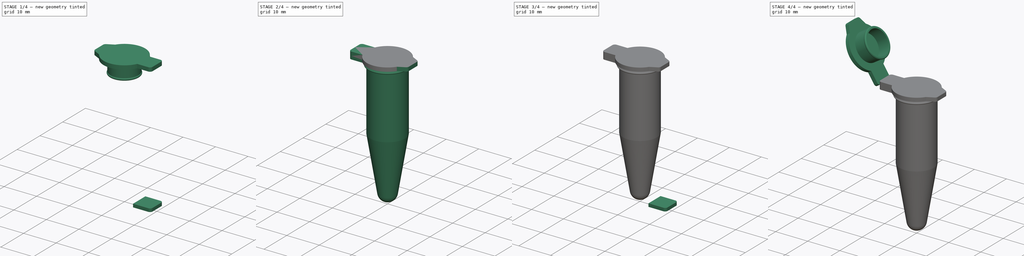
[diagram: build sequence overview — one tinted view per stage of 4, left to right]
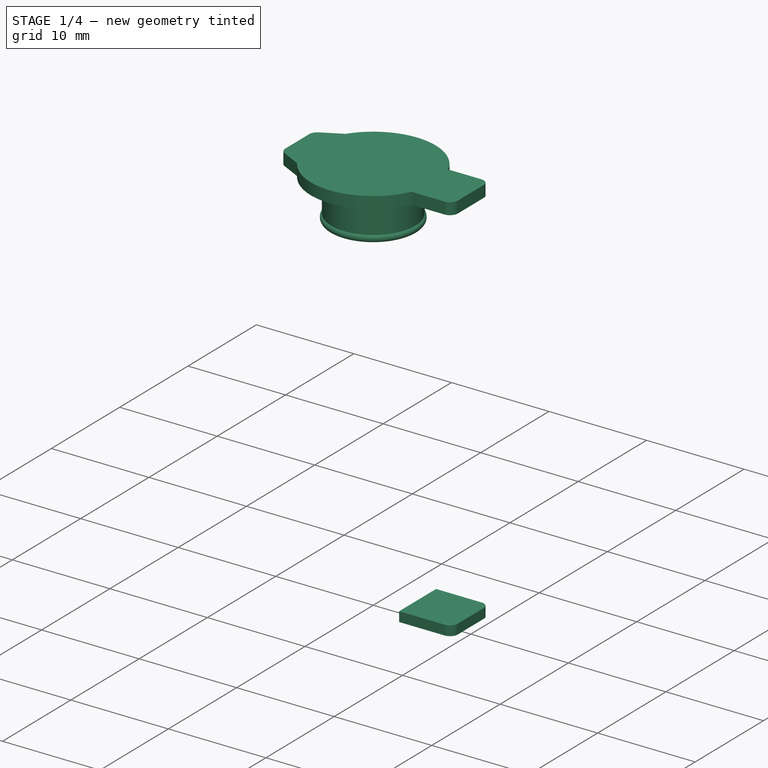
[diagram: stage 1 of 4 — iso view after this stage's code; geometry added in this stage tinted green]
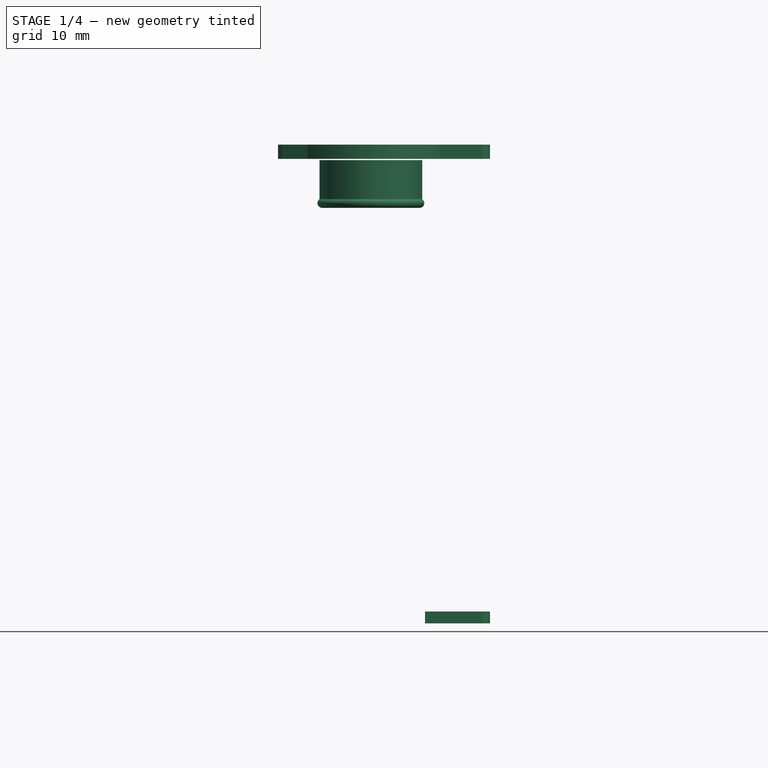
[diagram: stage 1 of 4 — front view after this stage's code; geometry added in this stage tinted green]
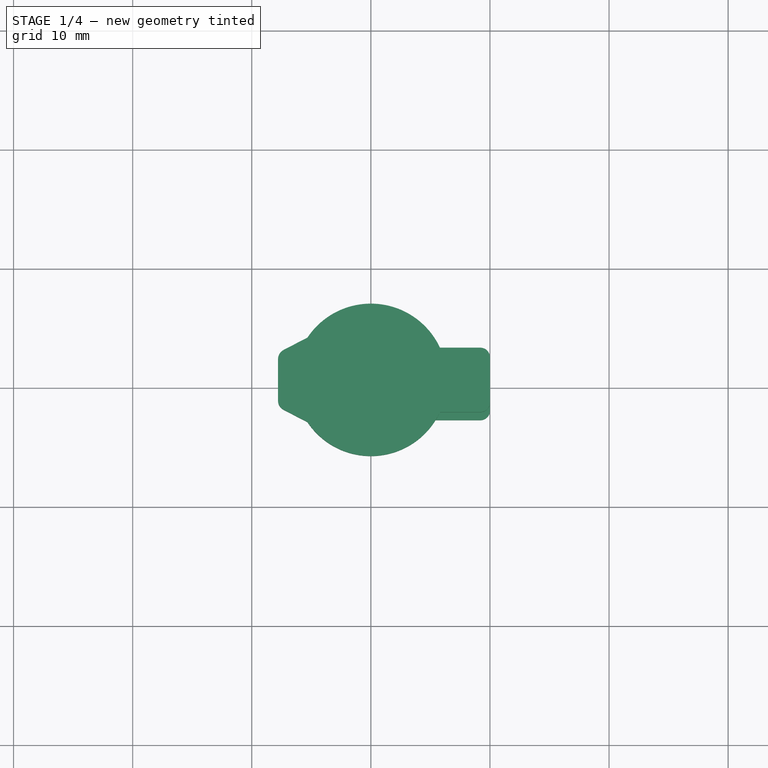
[diagram: stage 1 of 4 — top view after this stage's code; geometry added in this stage tinted green]
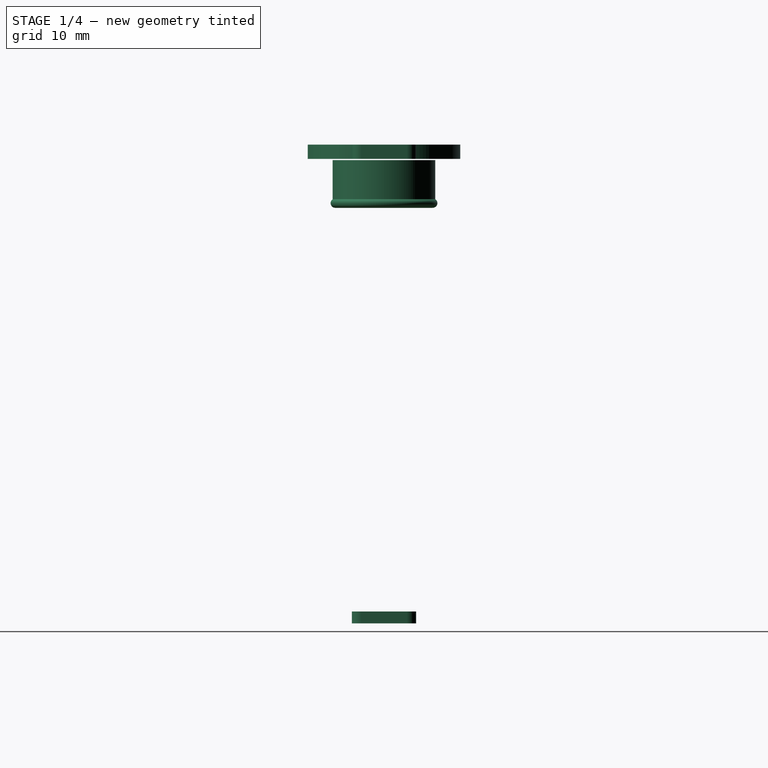
[diagram: stage 1 of 4 — right view after this stage's code; geometry added in this stage tinted green]
FCSTD DOCUMENT  (FreeCAD 0.20R29410 (Git))
Label: Eppendorf tube
License: All rights reserved
LicenseURL: http://en.wikipedia.org/wiki/All_rights_reserved
objects: Sketcher::SketchObject×8, PartDesign::Body×8, TechDraw::DrawViewPart×6, PartDesign::Revolution×4, PartDesign::Pad×4, Part::MultiFuse×4, Part::Compound×2, TechDraw::DrawSVGTemplate×1, TechDraw::DrawPage×1
note: 38 computed .brp shape members not serialized (recipe doc carries the construction recipe); baked Part::Feature solids carry a one-line shape summary decoded from their .brp

FEATURE [PartDesign::Body] Body001  label="Eppendorf body"
  Group = -> [Sketch001,Revolution]
  Origin = -> Origin001
  Tip = -> Revolution
FEATURE [Sketcher::SketchObject] Sketch
  FullyConstrained = false
  MapMode = 5
  Placement = pos=(0,0,0) rot=(1,0,0;1.5708rad)
  Support = -> [XZ_Plane]
  sketch-geometry (13):
    g0: LineSegment StartX=0 StartY=34.9 StartZ=0 EndX=4.01891 EndY=34.9 EndZ=0
    g1: LineSegment StartX=0 StartY=0 StartZ=0 EndX=0 EndY=38.9 EndZ=0
    g2: ArcOfCircle CenterX=4.09051 CenterY=35.2887 CenterZ=0 NormalX=0 NormalY=0 NormalZ=1 AngleXU=0 Radius=0.395229 StartAngle=4.53021 EndAngle=7.26546
    g3: LineSegment StartX=4.30992 StartY=35.6174 StartZ=0 EndX=4.30992 EndY=38.9 EndZ=0
    g4: LineSegment StartX=4.30992 StartY=38.9 StartZ=0 EndX=0 EndY=38.9 EndZ=0
    g5: LineSegment StartX=3.79002 StartY=34.9 StartZ=0 EndX=3.79002 EndY=38.631 EndZ=0
    g6: LineSegment StartX=3.79002 StartY=38.631 StartZ=0 EndX=0 EndY=38.631 EndZ=0
    g7: LineSegment StartX=3.79002 StartY=34.9 StartZ=0 EndX=4.01891 EndY=34.9 EndZ=0
    g8: LineSegment StartX=4.30992 StartY=35.6174 StartZ=0 EndX=4.30992 EndY=38.9 EndZ=0
    g9: LineSegment StartX=4.30992 StartY=38.9 StartZ=0 EndX=0 EndY=38.9 EndZ=0
    g10: LineSegment StartX=0 StartY=38.631 StartZ=0 EndX=0 EndY=38.9 EndZ=0
    g11: LineSegment StartX=0 StartY=38.631 StartZ=0 EndX=3.79002 EndY=38.631 EndZ=0
    g12: LineSegment StartX=3.79002 StartY=38.631 StartZ=0 EndX=3.79002 EndY=34.9 EndZ=0
  constraints (29):
    c: PointOnObject(g0,g-2)
    c: Horizontal(g0)
    c: Coincident(g1,g-1)
    c: PointOnObject(g1,g-2)
    c: DistanceY(g1,g1) = 38.9
    c: DistanceY(g0,g1) = 4
    c: Coincident(g2,g0)
    c: Coincident(g3,g2)
    c: Vertical(g3)
    c: Coincident(g4,g3)
    c: Coincident(g4,g1)
    c: Horizontal(g4)
    c: PointOnObject(g5,g0)
    c: Vertical(g5)
    c: Coincident(g6,g5)
    c: PointOnObject(g6,g1)
    c: Horizontal(g6)
    c: Coincident(g7,g5)
    c: Coincident(g7,g0)
    c: Coincident(g8,g2)
    c: Coincident(g8,g3)
    c: Coincident(g9,g8)
    c: Coincident(g9,g1)
    c: Coincident(g10,g6)
    c: Coincident(g10,g9)
    c: Coincident(g11,g10)
    c: Coincident(g11,g5)
    c: Coincident(g12,g11)
    c: Coincident(g12,g7)
FEATURE [PartDesign::Revolution] Revolution001
  Angle = 360
  Axis = (0,2e-16,1)
  Base = (0,0,0)
  Placement = pos=(0,0,0) rot=(1,0,0;1.5708rad)
  Profile = -> Sketch
  ReferenceAxis = -> Sketch [V_Axis]
  Reversed = true
FEATURE [PartDesign::Body] Body  label="Cup inner"
  Group = -> [Sketch,Revolution001]
  Origin = -> Origin
  Tip = -> Revolution001
FEATURE [Sketcher::SketchObject] Sketch002
  FullyConstrained = false
  MapMode = 5
  Support = -> [XY_Plane002]
  sketch-geometry (17):
    g0: ArcOfCircle CenterX=0 CenterY=0 CenterZ=0 NormalX=0 NormalY=0 NormalZ=1 AngleXU=0 Radius=6.4 StartAngle=3.72976 EndAngle=5.84767
    g1: LineSegment StartX=5.80259 StartY=2.7 StartZ=0 EndX=9.2 EndY=2.7 EndZ=0
    g2: LineSegment StartX=5.80259 StartY=-2.7 StartZ=0 EndX=9.2 EndY=-2.7 EndZ=0
    g3: LineSegment StartX=10 StartY=1.9 StartZ=0 EndX=10 EndY=0 EndZ=0
    g4: LineSegment StartX=10 StartY=-1.9 StartZ=0 EndX=10 EndY=0 EndZ=0
    g5: LineSegment StartX=-5.32452 StartY=3.55098 StartZ=0 EndX=-7.33063 EndY=2.50984 EndZ=0
    g6: LineSegment StartX=-5.32452 StartY=-3.55098 StartZ=0 EndX=-7.33063 EndY=-2.50984 EndZ=0
    g7: LineSegment StartX=-7.79479 StartY=-1.74599 StartZ=0 EndX=-7.79479 EndY=0 EndZ=0
    g8: LineSegment StartX=-7.79479 StartY=0 StartZ=0 EndX=-7.79479 EndY=1.74599 EndZ=0
    g9: LineSegment StartX=-5.32452 StartY=-3.55098 StartZ=0 EndX=-5.32452 EndY=3.55098 EndZ=0
    g10: ArcOfCircle CenterX=0 CenterY=0 CenterZ=0 NormalX=0 NormalY=0 NormalZ=1 AngleXU=0 Radius=6.4 StartAngle=0.435512 EndAngle=2.55342
    g11: LineSegment StartX=5.80259 StartY=-2.7 StartZ=0 EndX=5.80259 EndY=2.7 EndZ=0
    g12: ArcOfCircle CenterX=-6.93421 CenterY=1.74599 CenterZ=0 NormalX=0 NormalY=0 NormalZ=1 AngleXU=0 Radius=0.860587 StartAngle=2.04952 EndAngle=3.14159
    g13: ArcOfCircle CenterX=-6.93421 CenterY=-1.74599 CenterZ=0 NormalX=0 NormalY=0 NormalZ=1 AngleXU=0 Radius=0.860587 StartAngle=3.14159 EndAngle=4.23367
    g14: ArcOfCircle CenterX=9.2 CenterY=1.9 CenterZ=0 NormalX=0 NormalY=0 NormalZ=1 AngleXU=0 Radius=0.8 StartAngle=0 EndAngle=1.5708
    g15: ArcOfCircle CenterX=9.2 CenterY=-1.9 CenterZ=0 NormalX=0 NormalY=0 NormalZ=1 AngleXU=0 Radius=0.8 StartAngle=4.71239 EndAngle=6.28319
    g16: LineSegment StartX=0 StartY=0 StartZ=0 EndX=10 EndY=0 EndZ=0
  constraints (40):
    c: Coincident(g0,g-1)
    c: Horizontal(g1)
    c: Horizontal(g2)
    c: PointOnObject(g3,g-1)
    c: Vertical(g3)
    c: Coincident(g4,g3)
    c: Vertical(g4)
    c: Equal(g4,g3)
    c: PointOnObject(g7,g-1)
    c: Vertical(g7)
    c: Coincident(g8,g7)
    c: Vertical(g8)
    c: Equal(g8,g7)
    c: Coincident(g9,g6)
    c: Coincident(g9,g5)
    c: Vertical(g9)
    c: Coincident(g10,g5)
    c: Coincident(g0,g9)
    c: Equal(g0,g10)
    c: Coincident(g0,g2)
    c: Coincident(g10,g1)
    c: Coincident(g0,g10)
    c: Coincident(g11,g0)
    c: Coincident(g11,g1)
    c: Tangent(g8,g12) = 1.5708
    c: Tangent(g5,g12) = -1.5708
    c: Tangent(g6,g13) = 1.5708
    c: Tangent(g7,g13) = 1.5708
    c: Equal(g12,g13)
    c: Tangent(g1,g14) = 1.5708
    c: Tangent(g3,g14) = 1.5708
    c: Tangent(g2,g15) = -1.5708
    c: Tangent(g4,g15) = -1.5708
    c: Vertical(g11)
    c: Coincident(g16,g0)
    c: Coincident(g16,g3)
    c: DistanceX(g16,g16) = 10
    c: DistanceY(g3,g3) = 1.9
    c: Radius(g10) = 6.4
    c: Radius(g14) = 0.8
FEATURE [PartDesign::Pad] Pad
  Direction = (0,0,1)
  Length = 1.2
  Length2 = 10
  Profile = -> Sketch002
  ReferenceAxis = -> Sketch002 [N_Axis]
  Type = 0
FEATURE [PartDesign::Body] Body002  label="Cup"
  Group = -> [Sketch002,Pad]
  Origin = -> Origin002
  Placement = pos=(0,0,39) rot=(0,0,1;0rad)
  Tip = -> Pad
FEATURE [Sketcher::SketchObject] Sketch003
  FullyConstrained = false
  MapMode = 5
  Support = -> [XY_Plane003]
  sketch-geometry (9):
    g0: LineSegment StartX=0 StartY=0 StartZ=0 EndX=10 EndY=0 EndZ=0
    g1: LineSegment StartX=10 StartY=0 StartZ=0 EndX=10 EndY=1.9 EndZ=0
    g2: LineSegment StartX=10 StartY=0 StartZ=0 EndX=10 EndY=-1.9 EndZ=0
    g3: LineSegment StartX=4.54765 StartY=2.7 StartZ=0 EndX=9.26103 EndY=2.7 EndZ=0
    g4: LineSegment StartX=4.54765 StartY=-2.7 StartZ=0 EndX=9.22875 EndY=-2.7 EndZ=0
    g5: ArcOfCircle CenterX=9.2 CenterY=-1.90052 CenterZ=0 NormalX=0 NormalY=0 NormalZ=1 AngleXU=0 Radius=0.8 StartAngle=4.74833 EndAngle=6.28383
    g6: ArcOfCircle CenterX=9.2 CenterY=1.90233 CenterZ=0 NormalX=0 NormalY=0 NormalZ=1 AngleXU=0 Radius=0.8 StartAngle=6.28027 EndAngle=7.77762
    g7: LineSegment StartX=4.54765 StartY=0 StartZ=0 EndX=4.54765 EndY=2.7 EndZ=0
    g8: LineSegment StartX=4.54765 StartY=0 StartZ=0 EndX=4.54765 EndY=-2.7 EndZ=0
  constraints (25):
    c: Coincident(g0,g-1)
    c: PointOnObject(g0,g-1)
    c: Coincident(g1,g0)
    c: Vertical(g1)
    c: Coincident(g2,g0)
    c: Vertical(g2)
    c: Horizontal(g3)
    c: Horizontal(g4)
    c: Coincident(g5,g4)
    c: Coincident(g5,g2)
    c: Coincident(g6,g1)
    c: Coincident(g6,g3)
    c: PointOnObject(g7,g0)
    c: Coincident(g7,g3)
    c: Coincident(g8,g7)
    c: Coincident(g8,g4)
    c: Vertical(g8)
    c: Vertical(g7)
    c: Equal(g5,g6)
    c: Equal(g2,g1)
    c: DistanceX(g0,g1) = 10
    c: DistanceY(g1,g1) = 1.9
    c: Radius(g6) = 0.8
    c: DistanceY(g7,g3) = 2.7
    c: Equal(g8,g7)
FEATURE [PartDesign::Pad] Pad001
  Direction = (0,0,1)
  Length = 1
  Length2 = 10
  Profile = -> Sketch003
  ReferenceAxis = -> Sketch003 [N_Axis]
  Type = 0
FEATURE [Part::MultiFuse] Fusion001  label="Cup full"
  Shapes = -> [Body002,Body]
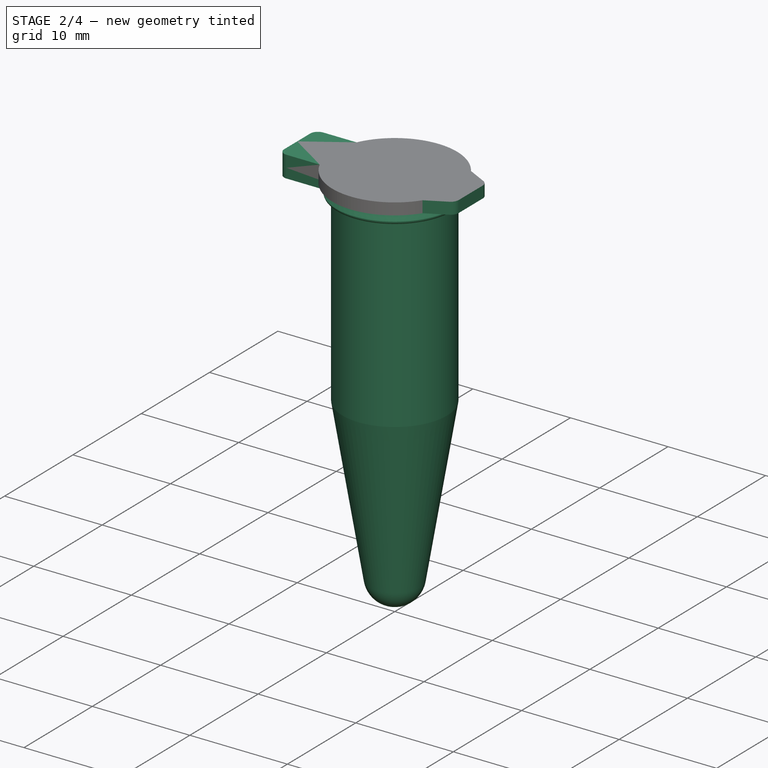
[diagram: stage 2 of 4 — iso view after this stage's code; geometry added in this stage tinted green]
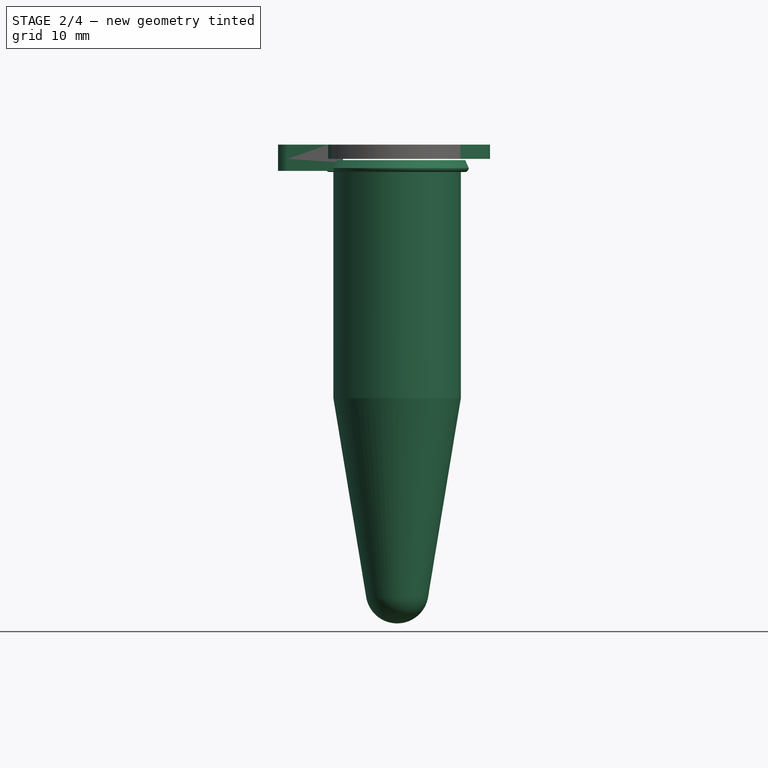
[diagram: stage 2 of 4 — front view after this stage's code; geometry added in this stage tinted green]
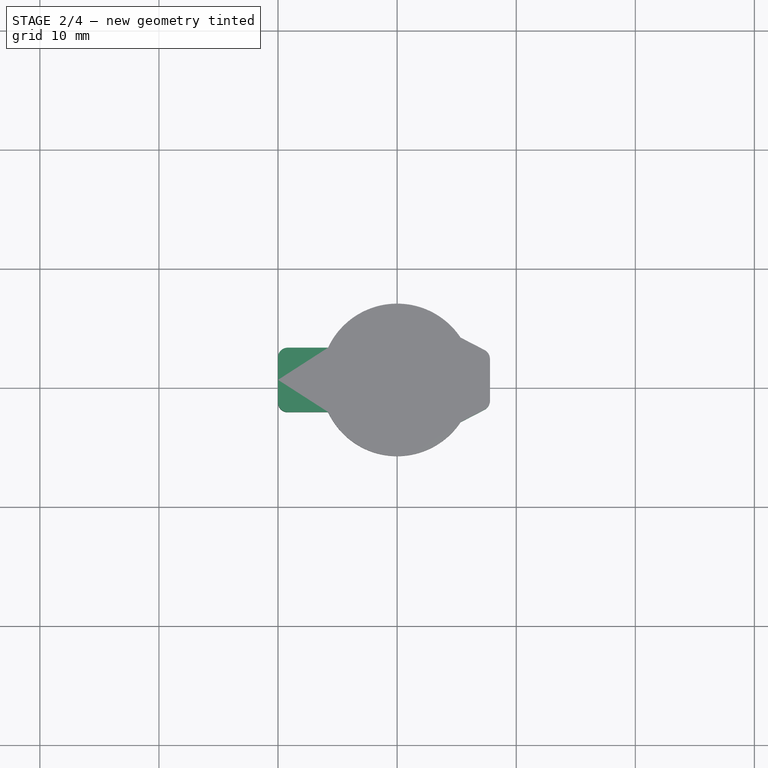
[diagram: stage 2 of 4 — top view after this stage's code; geometry added in this stage tinted green]
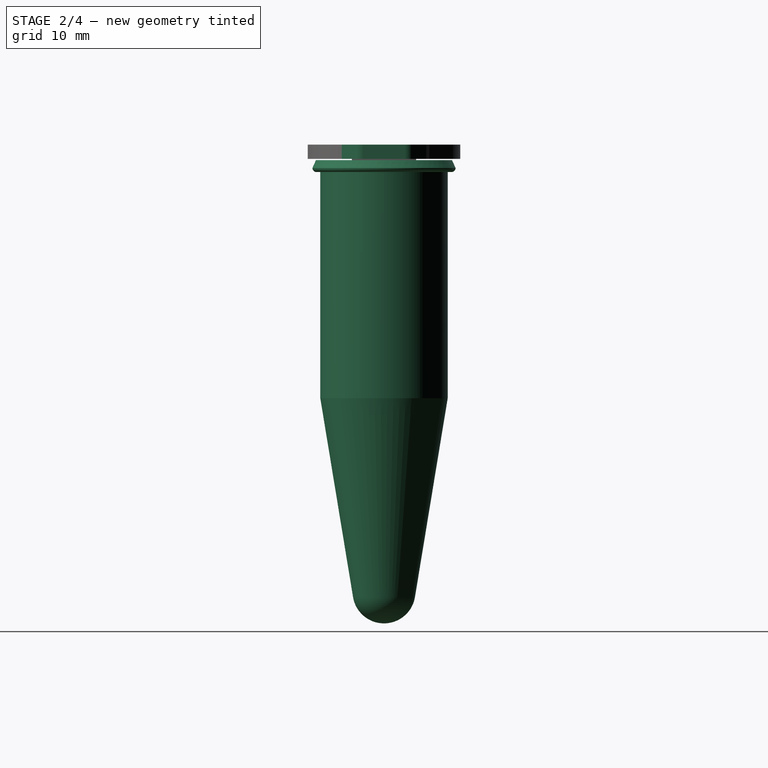
[diagram: stage 2 of 4 — right view after this stage's code; geometry added in this stage tinted green]
FEATURE [Sketcher::SketchObject] Sketch001
  FullyConstrained = false
  MapMode = 5
  Placement = pos=(0,0,0) rot=(1,0,0;1.5708rad)
  Support = -> [XZ_Plane001]
  sketch-geometry (12):
    g0: LineSegment StartX=-5e-16 StartY=0 StartZ=0 EndX=-3e-16 EndY=1.1 EndZ=0
    g1: ArcOfCircle CenterX=0 CenterY=2.63483 CenterZ=0 NormalX=0 NormalY=0 NormalZ=1 AngleXU=0 Radius=2.63483 StartAngle=4.71239 EndAngle=6.1199
    g2: ArcOfCircle CenterX=0 CenterY=2.92426 CenterZ=0 NormalX=0 NormalY=0 NormalZ=1 AngleXU=0 Radius=1.82426 StartAngle=4.71239 EndAngle=6.1199
    g3: LineSegment StartX=2.59979 StartY=2.20652 StartZ=0 EndX=5.35 EndY=18.9 EndZ=0
    g4: LineSegment StartX=1.8 StartY=2.62772 StartZ=0 EndX=4.45 EndY=18.7129 EndZ=0
    g5: LineSegment StartX=5.35 StartY=18.9 StartZ=0 EndX=5.35 EndY=37.9 EndZ=0
    g6: LineSegment StartX=4.45 StartY=18.7129 StartZ=0 EndX=4.45 EndY=38.9 EndZ=0
    g7: LineSegment StartX=4.45 StartY=38.9 StartZ=0 EndX=5.71416 EndY=38.9 EndZ=0
    g8: LineSegment StartX=5.71416 StartY=38.9 StartZ=0 EndX=6.01181 EndY=38.2343 EndZ=0
    g9: LineSegment StartX=5.35 StartY=37.9 StartZ=0 EndX=5.7161 EndY=37.9 EndZ=0
    g10: ArcOfCircle CenterX=5.65696 CenterY=38.2503 CenterZ=0 NormalX=0 NormalY=0 NormalZ=1 AngleXU=0 Radius=0.35521 StartAngle=4.87967 EndAngle=6.23837
    g11: LineSegment StartX=5.35 StartY=18.9 StartZ=0 EndX=4.45 EndY=18.7129 EndZ=0
  constraints (29):
    c: Coincident(g0,g-1)
    c: PointOnObject(g0,g-2)
    c: Coincident(g1,g0)
    c: Coincident(g2,g0)
    c: Coincident(g5,g3)
    c: Vertical(g5)
    c: Coincident(g6,g4)
    c: Vertical(g6)
    c: Coincident(g7,g6)
    c: Horizontal(g7)
    c: Coincident(g8,g7)
    c: Coincident(g9,g5)
    c: Horizontal(g9)
    c: Coincident(g10,g8)
    c: Coincident(g10,g9)
    c: PointOnObject(g2,g-2)
    c: PointOnObject(g1,g-2)
    c: Tangent(g4,g2) = -1.5708
    c: Tangent(g3,g1) = -1.5708
    c: Coincident(g11,g3)
    c: Coincident(g11,g4)
    c: DistanceX(g0,g2) = 1.8
    c: DistanceX(g0,g4) = 4.45
    c: DistanceY(g3,g6) = 20
    c: DistanceX(g0,g3) = 5.35
    c: DistanceY(g0,g6) = 38.9
    c: DistanceY(g0,g6) = 37.8
    c: DistanceY(g5,g6) = 1
    c: Parallel(g3,g4)
FEATURE [PartDesign::Revolution] Revolution
  Angle = 360
  Axis = (0,2e-16,1)
  Base = (0,0,0)
  Placement = pos=(0,0,0) rot=(1,0,0;1.5708rad)
  Profile = -> Sketch001
  ReferenceAxis = -> Sketch001 [V_Axis]
  Reversed = true
FEATURE [PartDesign::Body] Body003  label="Hinge"
  Group = -> [Sketch003,Pad001]
  Origin = -> Origin003
  Placement = pos=(0,0,38) rot=(0,0,1;0rad)
  Tip = -> Pad001
FEATURE [Part::MultiFuse] Fusion  label="Body w hinge"
  Shapes = -> [Body001,Body003]
FEATURE [Part::Compound] Compound  label="Tube closed"
  Links = -> [Fusion,Fusion001]
  Placement = pos=(0,0,0) rot=(0,0,1;3.14159rad)
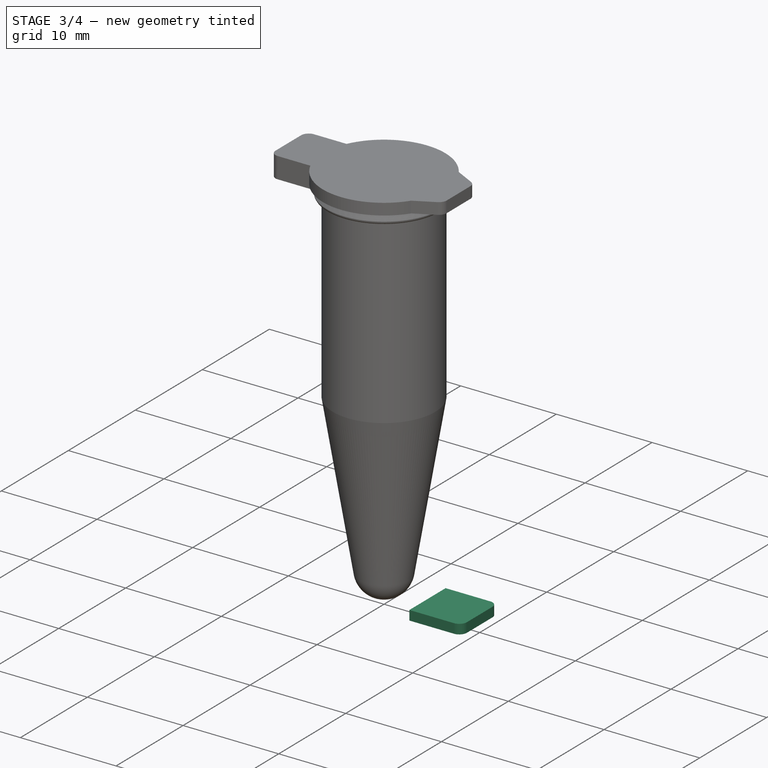
[diagram: stage 3 of 4 — iso view after this stage's code; geometry added in this stage tinted green]
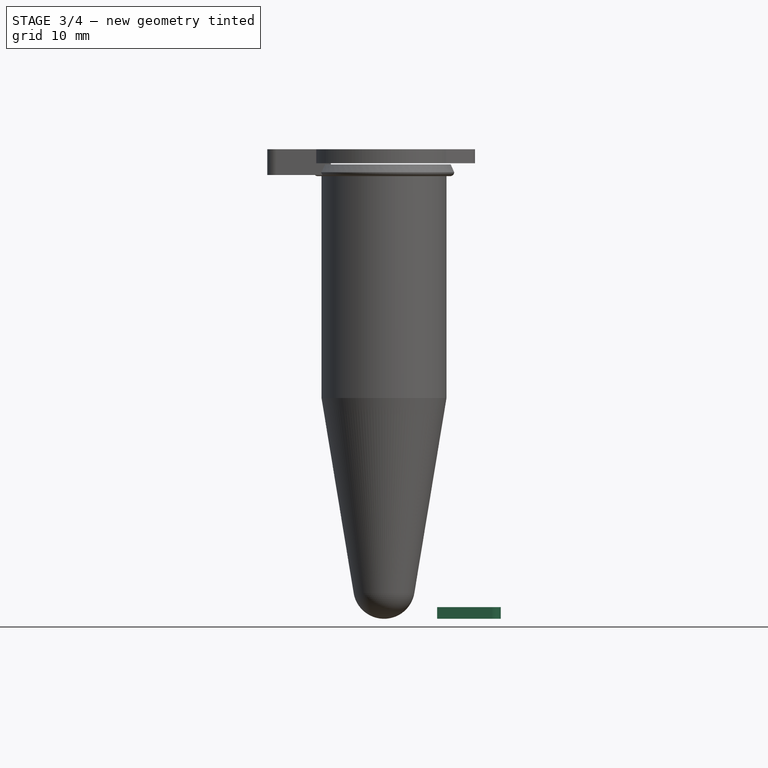
[diagram: stage 3 of 4 — front view after this stage's code; geometry added in this stage tinted green]
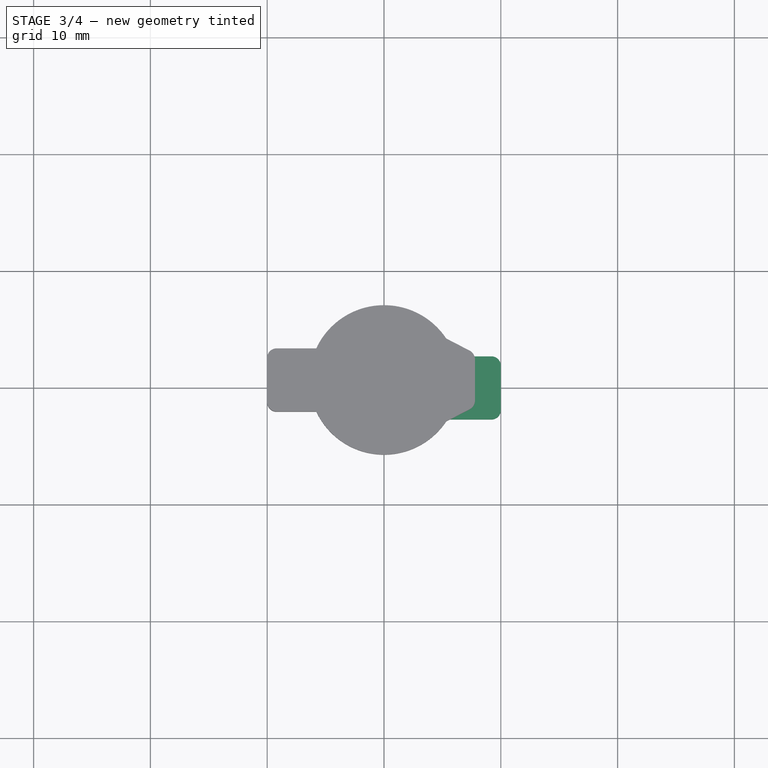
[diagram: stage 3 of 4 — top view after this stage's code; geometry added in this stage tinted green]
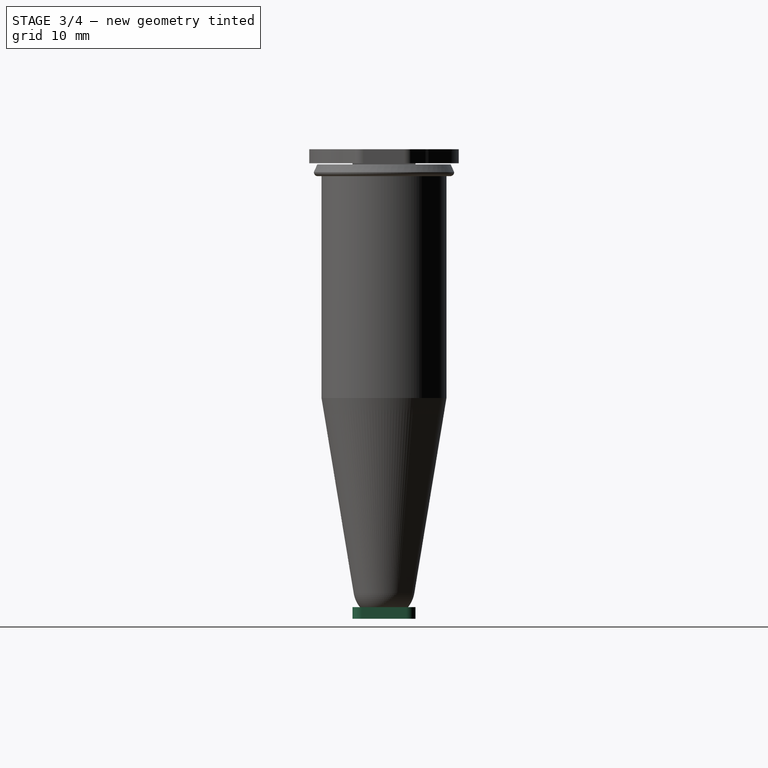
[diagram: stage 3 of 4 — right view after this stage's code; geometry added in this stage tinted green]
FEATURE [TechDraw::DrawSVGTemplate] Template
  Height = 210
  Orientation = 1
  Width = 297
FEATURE [Sketcher::SketchObject] Sketch004
  FullyConstrained = false
  MapMode = 5
  Placement = pos=(0,0,0) rot=(1,0,0;1.5708rad)
  Support = -> [XZ_Plane004]
  sketch-geometry (13):
    g0: LineSegment StartX=0 StartY=34.9 StartZ=0 EndX=4.01891 EndY=34.9 EndZ=0
    g1: LineSegment StartX=0 StartY=0 StartZ=0 EndX=0 EndY=38.9 EndZ=0
    g2: ArcOfCircle CenterX=4.09051 CenterY=35.2887 CenterZ=0 NormalX=0 NormalY=0 NormalZ=1 AngleXU=0 Radius=0.395229 StartAngle=4.53021 EndAngle=7.26546
    g3: LineSegment StartX=4.30992 StartY=35.6174 StartZ=0 EndX=4.30992 EndY=38.9 EndZ=0
    g4: LineSegment StartX=4.30992 StartY=38.9 StartZ=0 EndX=0 EndY=38.9 EndZ=0
    g5: LineSegment StartX=3.79002 StartY=34.9 StartZ=0 EndX=3.79002 EndY=38.631 EndZ=0
    g6: LineSegment StartX=3.79002 StartY=38.631 StartZ=0 EndX=0 EndY=38.631 EndZ=0
    g7: LineSegment StartX=3.79002 StartY=34.9 StartZ=0 EndX=4.01891 EndY=34.9 EndZ=0
    g8: LineSegment StartX=4.30992 StartY=35.6174 StartZ=0 EndX=4.30992 EndY=38.9 EndZ=0
    g9: LineSegment StartX=4.30992 StartY=38.9 StartZ=0 EndX=0 EndY=38.9 EndZ=0
    g10: LineSegment StartX=0 StartY=38.631 StartZ=0 EndX=0 EndY=38.9 EndZ=0
    g11: LineSegment StartX=0 StartY=38.631 StartZ=0 EndX=3.79002 EndY=38.631 EndZ=0
    g12: LineSegment StartX=3.79002 StartY=38.631 StartZ=0 EndX=3.79002 EndY=34.9 EndZ=0
  constraints (29):
    c: PointOnObject(g0,g-2)
    c: Horizontal(g0)
    c: Coincident(g1,g-1)
    c: PointOnObject(g1,g-2)
    c: DistanceY(g1,g1) = 38.9
    c: DistanceY(g0,g1) = 4
    c: Coincident(g2,g0)
    c: Coincident(g3,g2)
    c: Vertical(g3)
    c: Coincident(g4,g3)
    c: Coincident(g4,g1)
    c: Horizontal(g4)
    c: PointOnObject(g5,g0)
    c: Vertical(g5)
    c: Coincident(g6,g5)
    c: PointOnObject(g6,g1)
    c: Horizontal(g6)
    c: Coincident(g7,g5)
    c: Coincident(g7,g0)
    c: Coincident(g8,g2)
    c: Coincident(g8,g3)
    c: Coincident(g9,g8)
    c: Coincident(g9,g1)
    c: Coincident(g10,g6)
    c: Coincident(g10,g9)
    c: Coincident(g11,g10)
    c: Coincident(g11,g5)
    c: Coincident(g12,g11)
    c: Coincident(g12,g7)
FEATURE [PartDesign::Revolution] Revolution003
  Angle = 360
  Axis = (0,2e-16,1)
  Base = (0,0,0)
  Placement = pos=(0,0,0) rot=(1,0,0;1.5708rad)
  Profile = -> Sketch004
  ReferenceAxis = -> Sketch004 [V_Axis]
  Reversed = true
FEATURE [PartDesign::Body] Body004  label="Cup inner001"
  Group = -> [Sketch004,Revolution003]
  Origin = -> Origin004
  Tip = -> Revolution003
FEATURE [Sketcher::SketchObject] Sketch005
  FullyConstrained = false
  MapMode = 5
  Placement = pos=(0,0,0) rot=(1,0,0;1.5708rad)
  Support = -> [XZ_Plane005]
  sketch-geometry (12):
    g0: LineSegment StartX=-5e-16 StartY=0 StartZ=0 EndX=-3e-16 EndY=1.1 EndZ=0
    g1: ArcOfCircle CenterX=0 CenterY=2.63483 CenterZ=0 NormalX=0 NormalY=0 NormalZ=1 AngleXU=0 Radius=2.63483 StartAngle=4.71239 EndAngle=6.1199
    g2: ArcOfCircle CenterX=0 CenterY=2.92426 CenterZ=0 NormalX=0 NormalY=0 NormalZ=1 AngleXU=0 Radius=1.82426 StartAngle=4.71239 EndAngle=6.1199
    g3: LineSegment StartX=2.59979 StartY=2.20652 StartZ=0 EndX=5.35 EndY=18.9 EndZ=0
    g4: LineSegment StartX=1.8 StartY=2.62772 StartZ=0 EndX=4.45 EndY=18.7129 EndZ=0
    g5: LineSegment StartX=5.35 StartY=18.9 StartZ=0 EndX=5.35 EndY=37.9 EndZ=0
    g6: LineSegment StartX=4.45 StartY=18.7129 StartZ=0 EndX=4.45 EndY=38.9 EndZ=0
    g7: LineSegment StartX=4.45 StartY=38.9 StartZ=0 EndX=5.71416 EndY=38.9 EndZ=0
    g8: LineSegment StartX=5.71416 StartY=38.9 StartZ=0 EndX=6.01181 EndY=38.2343 EndZ=0
    g9: LineSegment StartX=5.35 StartY=37.9 StartZ=0 EndX=5.7161 EndY=37.9 EndZ=0
    g10: ArcOfCircle CenterX=5.65696 CenterY=38.2503 CenterZ=0 NormalX=0 NormalY=0 NormalZ=1 AngleXU=0 Radius=0.35521 StartAngle=4.87967 EndAngle=6.23837
    g11: LineSegment StartX=5.35 StartY=18.9 StartZ=0 EndX=4.45 EndY=18.7129 EndZ=0
  constraints (29):
    c: Coincident(g0,g-1)
    c: PointOnObject(g0,g-2)
    c: Coincident(g1,g0)
    c: Coincident(g2,g0)
    c: Coincident(g5,g3)
    c: Vertical(g5)
    c: Coincident(g6,g4)
    c: Vertical(g6)
    c: Coincident(g7,g6)
    c: Horizontal(g7)
    c: Coincident(g8,g7)
    c: Coincident(g9,g5)
    c: Horizontal(g9)
    c: Coincident(g10,g8)
    c: Coincident(g10,g9)
    c: PointOnObject(g2,g-2)
    c: PointOnObject(g1,g-2)
    c: Tangent(g4,g2) = -1.5708
    c: Tangent(g3,g1) = -1.5708
    c: Coincident(g11,g3)
    c: Coincident(g11,g4)
    c: DistanceX(g0,g2) = 1.8
    c: DistanceX(g0,g4) = 4.45
    c: DistanceY(g3,g6) = 20
    c: DistanceX(g0,g3) = 5.35
    c: DistanceY(g0,g6) = 38.9
    c: DistanceY(g0,g6) = 37.8
    c: DistanceY(g5,g6) = 1
    c: Parallel(g3,g4)
FEATURE [PartDesign::Revolution] Revolution002
  Angle = 360
  Axis = (0,2e-16,1)
  Base = (0,0,0)
  Placement = pos=(0,0,0) rot=(1,0,0;1.5708rad)
  Profile = -> Sketch005
  ReferenceAxis = -> Sketch005 [V_Axis]
  Reversed = true
FEATURE [Sketcher::SketchObject] Sketch007
  FullyConstrained = false
  MapMode = 5
  Support = -> [XY_Plane007]
  sketch-geometry (9):
    g0: LineSegment StartX=0 StartY=0 StartZ=0 EndX=10 EndY=0 EndZ=0
    g1: LineSegment StartX=10 StartY=0 StartZ=0 EndX=10 EndY=1.9 EndZ=0
    g2: LineSegment StartX=10 StartY=0 StartZ=0 EndX=10 EndY=-1.9 EndZ=0
    g3: LineSegment StartX=4.54765 StartY=2.7 StartZ=0 EndX=9.26103 EndY=2.7 EndZ=0
    g4: LineSegment StartX=4.54765 StartY=-2.7 StartZ=0 EndX=9.22875 EndY=-2.7 EndZ=0
    g5: ArcOfCircle CenterX=9.2 CenterY=-1.90052 CenterZ=0 NormalX=0 NormalY=0 NormalZ=1 AngleXU=0 Radius=0.8 StartAngle=4.74833 EndAngle=6.28383
    g6: ArcOfCircle CenterX=9.2 CenterY=1.90233 CenterZ=0 NormalX=0 NormalY=0 NormalZ=1 AngleXU=0 Radius=0.8 StartAngle=6.28027 EndAngle=7.77762
    g7: LineSegment StartX=4.54765 StartY=0 StartZ=0 EndX=4.54765 EndY=2.7 EndZ=0
    g8: LineSegment StartX=4.54765 StartY=0 StartZ=0 EndX=4.54765 EndY=-2.7 EndZ=0
  constraints (25):
    c: Coincident(g0,g-1)
    c: PointOnObject(g0,g-1)
    c: Coincident(g1,g0)
    c: Vertical(g1)
    c: Coincident(g2,g0)
    c: Vertical(g2)
    c: Horizontal(g3)
    c: Horizontal(g4)
    c: Coincident(g5,g4)
    c: Coincident(g5,g2)
    c: Coincident(g6,g1)
    c: Coincident(g6,g3)
    c: PointOnObject(g7,g0)
    c: Coincident(g7,g3)
    c: Coincident(g8,g7)
    c: Coincident(g8,g4)
    c: Vertical(g8)
    c: Vertical(g7)
    c: Equal(g5,g6)
    c: Equal(g2,g1)
    c: DistanceX(g0,g1) = 10
    c: DistanceY(g1,g1) = 1.9
    c: Radius(g6) = 0.8
    c: DistanceY(g7,g3) = 2.7
    c: Equal(g8,g7)
FEATURE [PartDesign::Pad] Pad003
  Direction = (0,0,1)
  Length = 1
  Length2 = 10
  Profile = -> Sketch007
  ReferenceAxis = -> Sketch007 [N_Axis]
  Type = 0
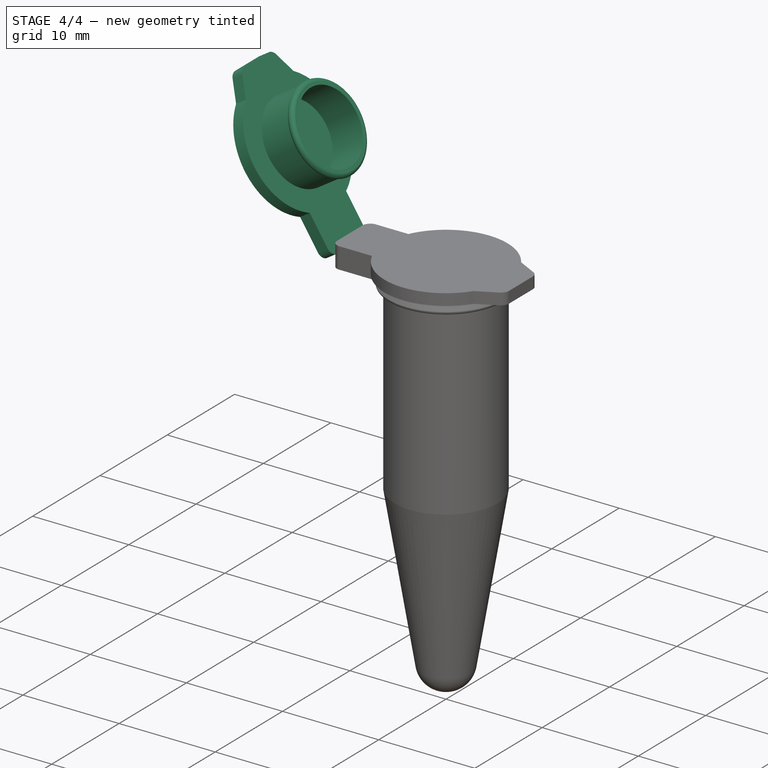
[diagram: stage 4 of 4 — iso view after this stage's code; geometry added in this stage tinted green]
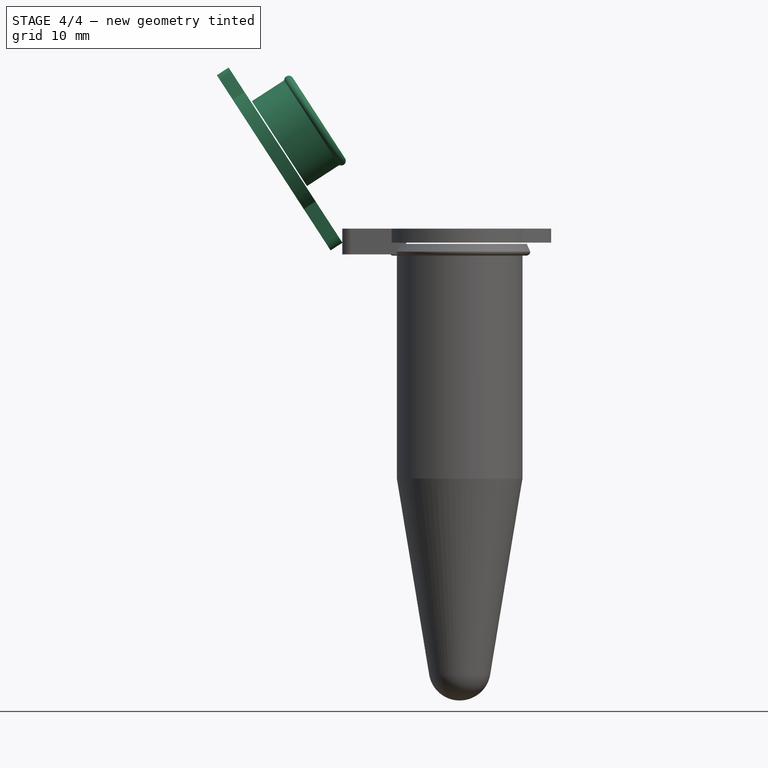
[diagram: stage 4 of 4 — front view after this stage's code; geometry added in this stage tinted green]
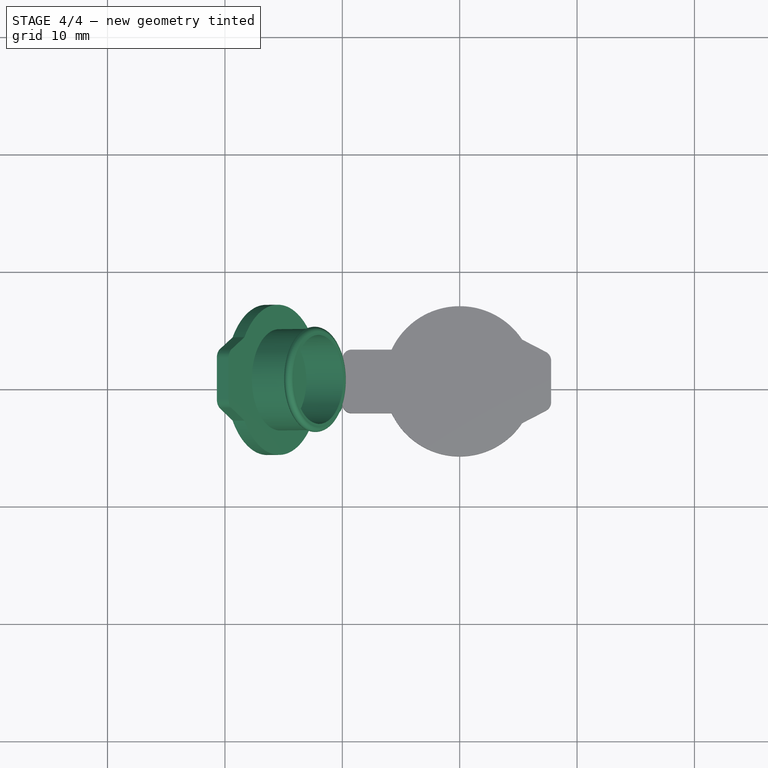
[diagram: stage 4 of 4 — top view after this stage's code; geometry added in this stage tinted green]
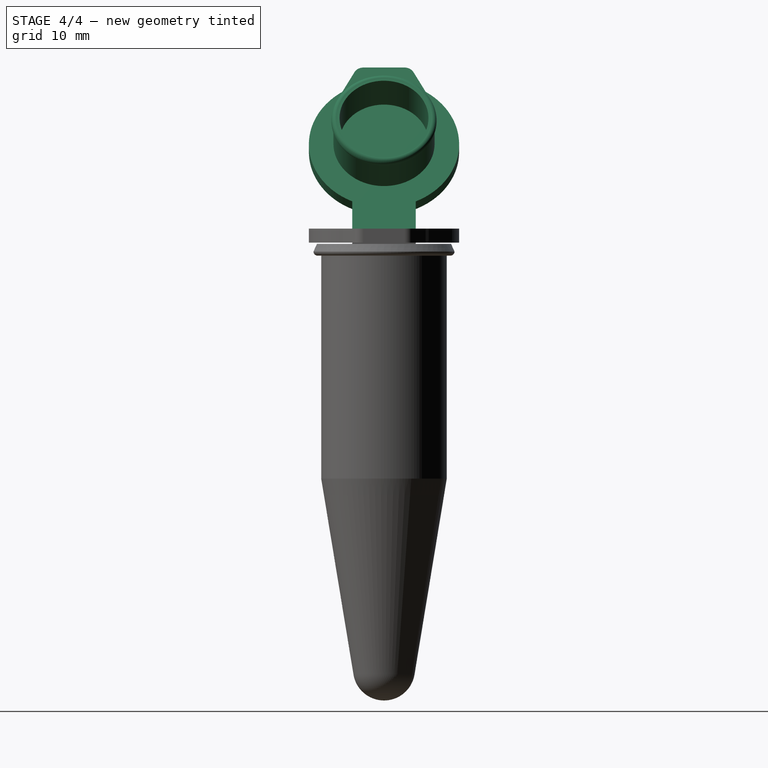
[diagram: stage 4 of 4 — right view after this stage's code; geometry added in this stage tinted green]
FEATURE [PartDesign::Body] Body005  label="Eppendorf body001"
  Group = -> [Sketch005,Revolution002]
  Origin = -> Origin005
  Tip = -> Revolution002
FEATURE [Sketcher::SketchObject] Sketch006
  FullyConstrained = false
  MapMode = 5
  Support = -> [XY_Plane006]
  sketch-geometry (17):
    g0: ArcOfCircle CenterX=0 CenterY=0 CenterZ=0 NormalX=0 NormalY=0 NormalZ=1 AngleXU=0 Radius=6.4 StartAngle=3.72976 EndAngle=5.84767
    g1: LineSegment StartX=5.80259 StartY=2.7 StartZ=0 EndX=9.2 EndY=2.7 EndZ=0
    g2: LineSegment StartX=5.80259 StartY=-2.7 StartZ=0 EndX=9.2 EndY=-2.7 EndZ=0
    g3: LineSegment StartX=10 StartY=1.9 StartZ=0 EndX=10 EndY=0 EndZ=0
    g4: LineSegment StartX=10 StartY=-1.9 StartZ=0 EndX=10 EndY=0 EndZ=0
    g5: LineSegment StartX=-5.32452 StartY=3.55098 StartZ=0 EndX=-7.33063 EndY=2.50984 EndZ=0
    g6: LineSegment StartX=-5.32452 StartY=-3.55098 StartZ=0 EndX=-7.33063 EndY=-2.50984 EndZ=0
    g7: LineSegment StartX=-7.79479 StartY=-1.74599 StartZ=0 EndX=-7.79479 EndY=0 EndZ=0
    g8: LineSegment StartX=-7.79479 StartY=0 StartZ=0 EndX=-7.79479 EndY=1.74599 EndZ=0
    g9: LineSegment StartX=-5.32452 StartY=-3.55098 StartZ=0 EndX=-5.32452 EndY=3.55098 EndZ=0
    g10: ArcOfCircle CenterX=0 CenterY=0 CenterZ=0 NormalX=0 NormalY=0 NormalZ=1 AngleXU=0 Radius=6.4 StartAngle=0.435512 EndAngle=2.55342
    g11: LineSegment StartX=5.80259 StartY=-2.7 StartZ=0 EndX=5.80259 EndY=2.7 EndZ=0
    g12: ArcOfCircle CenterX=-6.93421 CenterY=1.74599 CenterZ=0 NormalX=0 NormalY=0 NormalZ=1 AngleXU=0 Radius=0.860587 StartAngle=2.04952 EndAngle=3.14159
    g13: ArcOfCircle CenterX=-6.93421 CenterY=-1.74599 CenterZ=0 NormalX=0 NormalY=0 NormalZ=1 AngleXU=0 Radius=0.860587 StartAngle=3.14159 EndAngle=4.23367
    g14: ArcOfCircle CenterX=9.2 CenterY=1.9 CenterZ=0 NormalX=0 NormalY=0 NormalZ=1 AngleXU=0 Radius=0.8 StartAngle=0 EndAngle=1.5708
    g15: ArcOfCircle CenterX=9.2 CenterY=-1.9 CenterZ=0 NormalX=0 NormalY=0 NormalZ=1 AngleXU=0 Radius=0.8 StartAngle=4.71239 EndAngle=6.28319
    g16: LineSegment StartX=0 StartY=0 StartZ=0 EndX=10 EndY=0 EndZ=0
  constraints (40):
    c: Coincident(g0,g-1)
    c: Horizontal(g1)
    c: Horizontal(g2)
    c: PointOnObject(g3,g-1)
    c: Vertical(g3)
    c: Coincident(g4,g3)
    c: Vertical(g4)
    c: Equal(g4,g3)
    c: PointOnObject(g7,g-1)
    c: Vertical(g7)
    c: Coincident(g8,g7)
    c: Vertical(g8)
    c: Equal(g8,g7)
    c: Coincident(g9,g6)
    c: Coincident(g9,g5)
    c: Vertical(g9)
    c: Coincident(g10,g5)
    c: Coincident(g0,g9)
    c: Equal(g0,g10)
    c: Coincident(g0,g2)
    c: Coincident(g10,g1)
    c: Coincident(g0,g10)
    c: Coincident(g11,g0)
    c: Coincident(g11,g1)
    c: Tangent(g8,g12) = 1.5708
    c: Tangent(g5,g12) = -1.5708
    c: Tangent(g6,g13) = 1.5708
    c: Tangent(g7,g13) = 1.5708
    c: Equal(g12,g13)
    c: Tangent(g1,g14) = 1.5708
    c: Tangent(g3,g14) = 1.5708
    c: Tangent(g2,g15) = -1.5708
    c: Tangent(g4,g15) = -1.5708
    c: Vertical(g11)
    c: Coincident(g16,g0)
    c: Coincident(g16,g3)
    c: DistanceX(g16,g16) = 10
    c: DistanceY(g3,g3) = 1.9
    c: Radius(g10) = 6.4
    c: Radius(g14) = 0.8
FEATURE [PartDesign::Pad] Pad002
  Direction = (0,0,1)
  Length = 1.2
  Length2 = 10
  Profile = -> Sketch006
  ReferenceAxis = -> Sketch006 [N_Axis]
  Type = 0
FEATURE [PartDesign::Body] Body006  label="Cup001"
  Group = -> [Sketch006,Pad002]
  Origin = -> Origin006
  Placement = pos=(0,0,39) rot=(0,0,1;0rad)
  Tip = -> Pad002
FEATURE [Part::MultiFuse] Fusion003  label="Cup full001"
  Placement = pos=(-17.2693,0,68.626) rot=(0,-1,0;4.13639rad)
  Shapes = -> [Body006,Body004]
FEATURE [PartDesign::Body] Body007  label="Hinge001"
  Group = -> [Sketch007,Pad003]
  Origin = -> Origin007
  Placement = pos=(0,0,38) rot=(0,0,1;0rad)
  Tip = -> Pad003
FEATURE [Part::MultiFuse] Fusion002  label="Body w hinge001"
  Shapes = -> [Body005,Body007]
FEATURE [Part::Compound] Compound001  label="Tube opened"
  Links = -> [Fusion002,Fusion003]
  Placement = pos=(0,0,0) rot=(0,0,1;3.14159rad)
FEATURE [TechDraw::DrawViewPart] View
  CoarseView = false
  Direction = (0,-1,0)
  Focus = 100
  HardHidden = false
  IsoCount = 0
  IsoHidden = false
  IsoVisible = false
  LockPosition = false
  Perspective = false
  Rotation = 0
  ScaleType = 0
  SeamHidden = false
  SeamVisible = true
  SmoothHidden = false
  SmoothVisible = true
  Source = -> [Compound]
  X = 37.7553
  XDirection = (1,0,0)
  Y = 106.277
FEATURE [TechDraw::DrawViewPart] View001
  CoarseView = false
  Direction = (0.577,-0.577,0.577)
  Focus = 100
  HardHidden = false
  IsoCount = 0
  IsoHidden = false
  IsoVisible = false
  LockPosition = false
  Perspective = false
  Rotation = 0
  ScaleType = 0
  SeamHidden = false
  SeamVisible = true
  SmoothHidden = false
  SmoothVisible = true
  Source = -> [Compound]
  X = 38.3936
  XDirection = (0.707,0.707,0)
  Y = 162.766
FEATURE [TechDraw::DrawViewPart] View002
  CoarseView = false
  Direction = (1,0,0)
  Focus = 100
  HardHidden = false
  IsoCount = 0
  IsoHidden = false
  IsoVisible = false
  LockPosition = false
  Perspective = false
  Rotation = 0
  ScaleType = 0
  SeamHidden = false
  SeamVisible = true
  SmoothHidden = false
  SmoothVisible = true
  Source = -> [Compound001]
  X = 133.816
  XDirection = (0,1,0)
  Y = 132.619
FEATURE [TechDraw::DrawViewPart] View003
  CoarseView = false
  Direction = (0.577,-0.577,0.577)
  Focus = 100
  HardHidden = false
  IsoCount = 0
  IsoHidden = false
  IsoVisible = false
  LockPosition = false
  Perspective = false
  Rotation = 0
  ScaleType = 0
  SeamHidden = false
  SeamVisible = true
  SmoothHidden = false
  SmoothVisible = true
  Source = -> [Compound001]
  X = 249.537
  XDirection = (0.707,0.707,0)
  Y = 138.213
FEATURE [TechDraw::DrawViewPart] View004
  CoarseView = false
  Direction = (0.577,-0.577,0.577)
  Focus = 100
  HardHidden = true
  IsoCount = 0
  IsoHidden = true
  IsoVisible = true
  LockPosition = false
  Perspective = false
  Rotation = 0
  ScaleType = 0
  SeamHidden = false
  SeamVisible = true
  SmoothHidden = true
  SmoothVisible = true
  Source = -> [Compound001]
  X = 185.559
  XDirection = (0.707,0.707,0)
  Y = 135.416
FEATURE [TechDraw::DrawViewPart] View005
  CoarseView = false
  Direction = (0.577,-0.577,0.577)
  Focus = 100
  HardHidden = true
  IsoCount = 0
  IsoHidden = false
  IsoVisible = true
  LockPosition = false
  Perspective = false
  Rotation = 0
  ScaleType = 0
  SeamHidden = false
  SeamVisible = true
  SmoothHidden = false
  SmoothVisible = true
  Source = -> [Compound]
  X = 73.6834
  XDirection = (0.707,0.707,0)
  Y = 161.986
FEATURE [TechDraw::DrawPage] Page
  KeepUpdated = true
  NextBalloonIndex = 1
  ProjectionType = 0
  Template = -> Template
  Views = -> [View,View001,View002,View003,View004,View005]
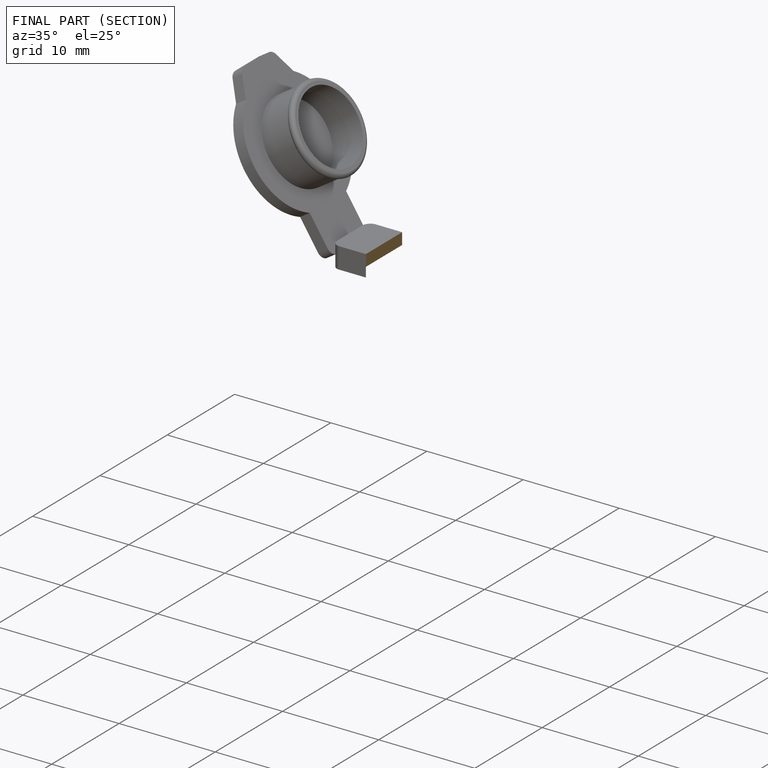
[diagram: finished part — half-section view (interior)]
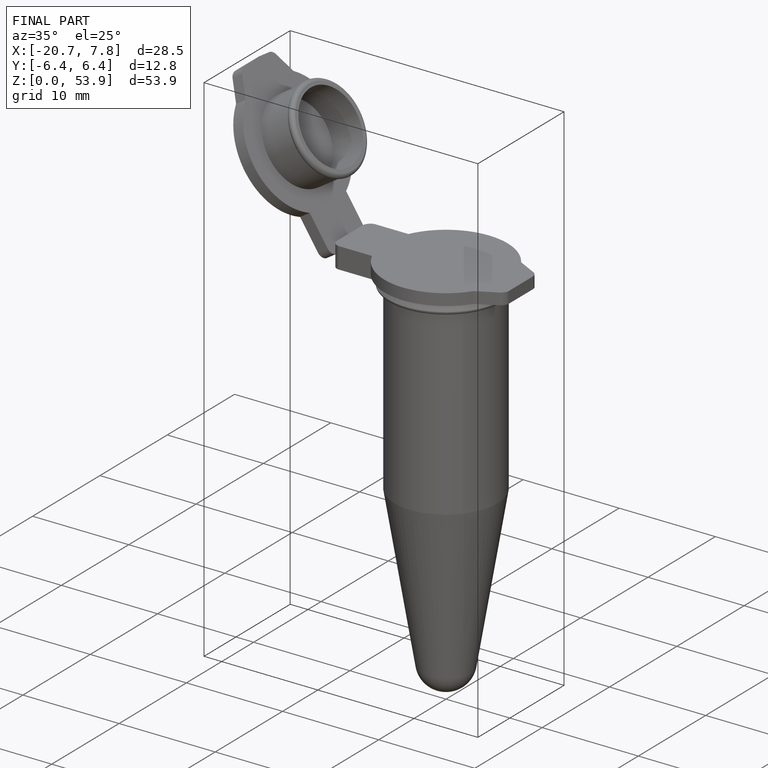
[diagram: finished part — iso view with bounding-box wireframe]
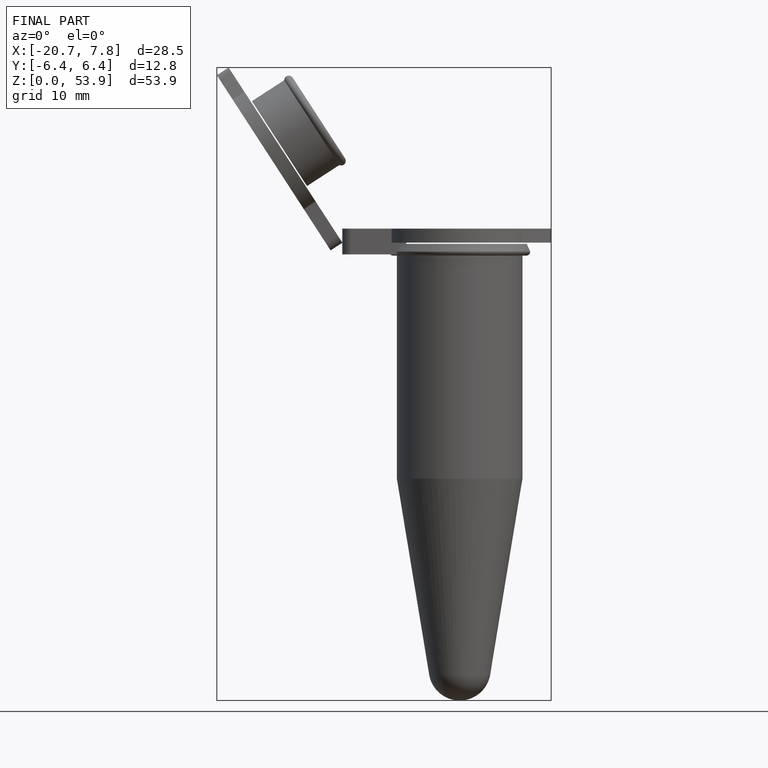
[diagram: finished part — front view with bounding-box wireframe]
